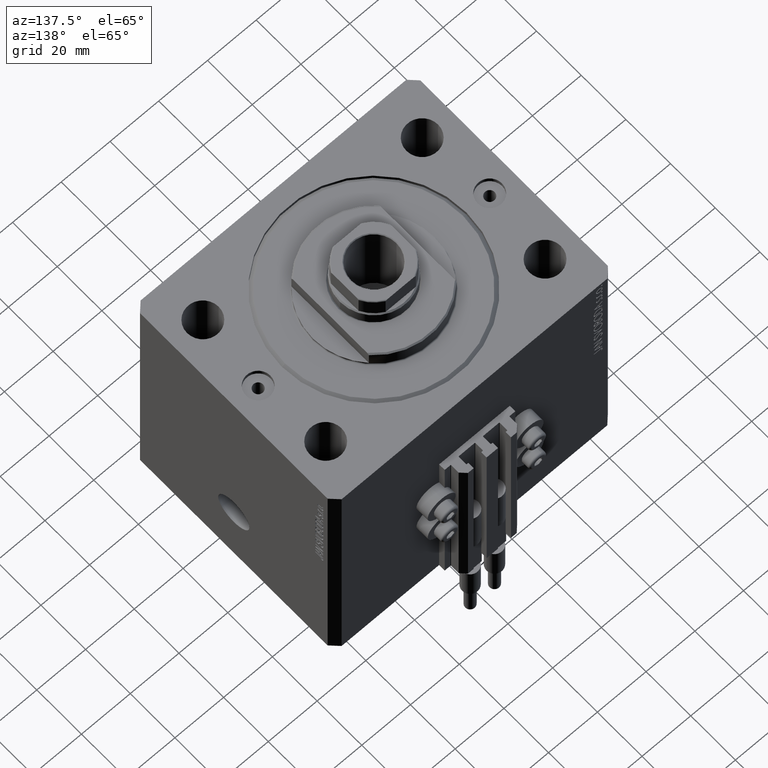
[diagram: clean part render]
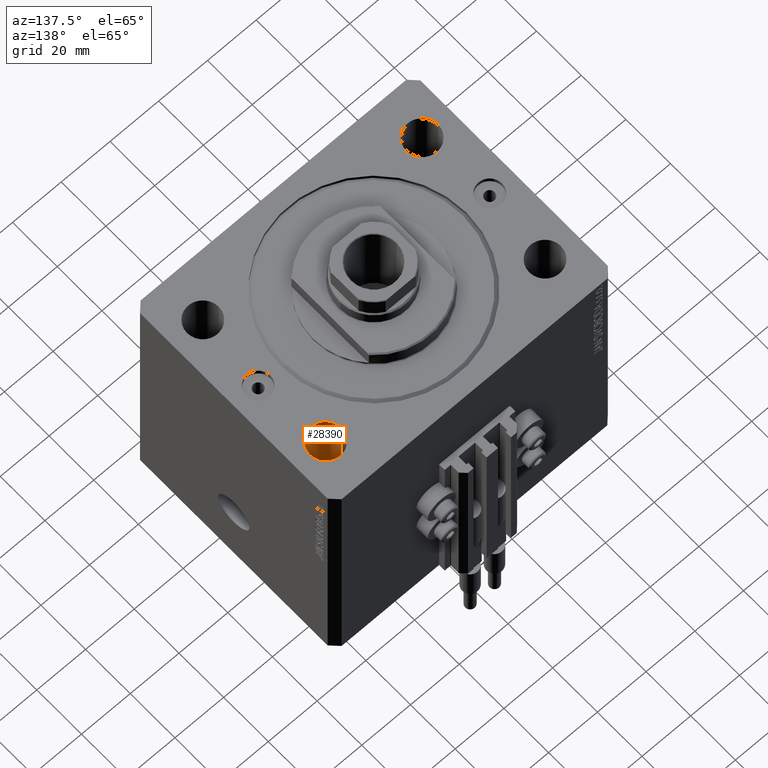
[diagram: same view with one face highlighted and labeled with its STEP entity id]
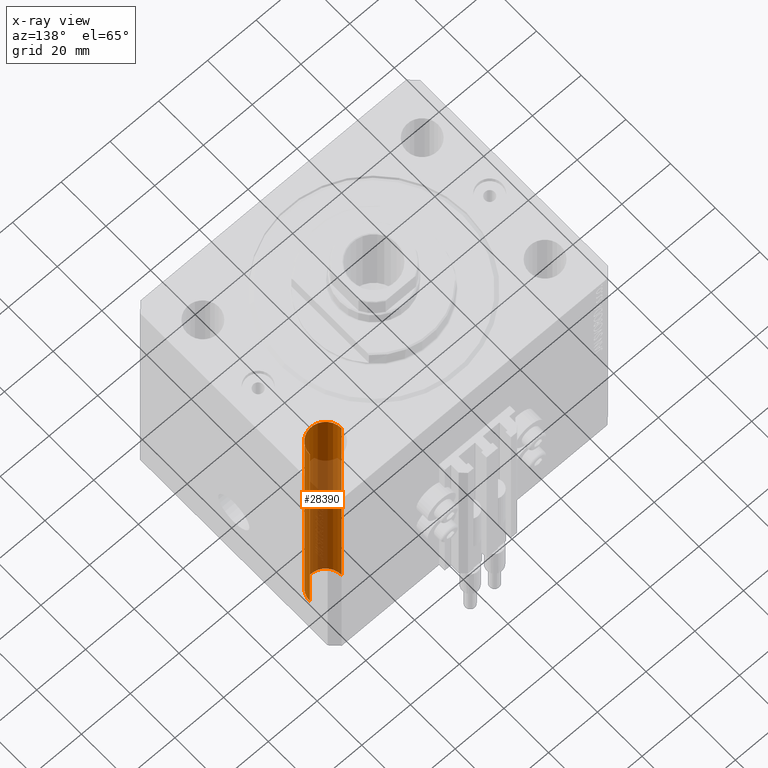
[diagram: x-ray of the same camera — body ghosted, the highlighted face saturated]
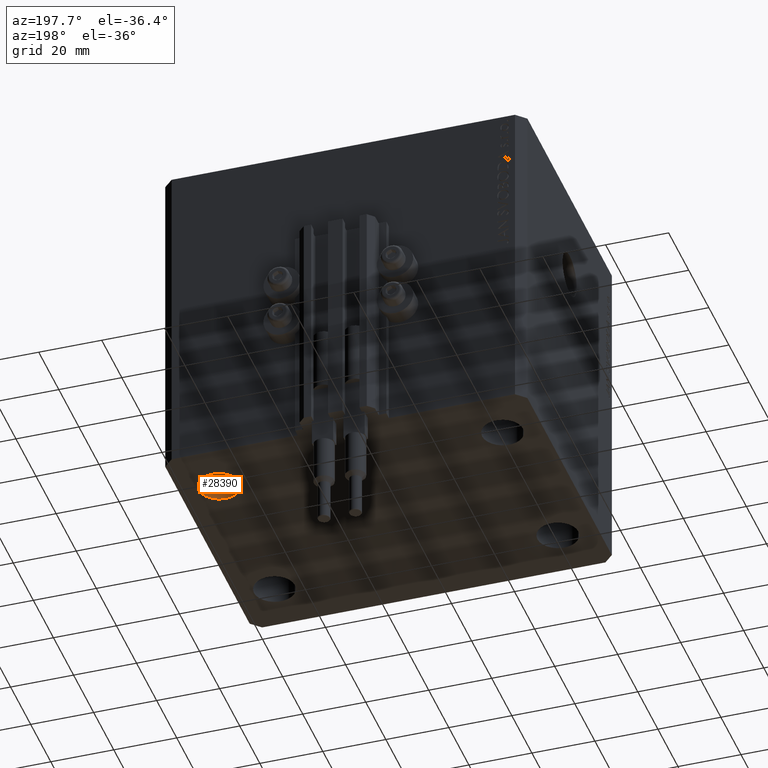
[diagram: same view with one face highlighted and labeled with its STEP entity id]
A machine part, auxiliary view. The second image highlights one B-rep face of the part: STEP entity #28390.
The next image is the same camera in x-ray: the body ghosted, the highlighted face saturated — about 64% of this face is hidden behind the body in this view.
A second angle (auxiliary view) of the same face is appended — the face is thin or edge-on in the first view.
In plain terms, the highlighted cylindrical surface (edge-blend (fillet) strip) has radius 6.5 mm, axis along (0, 0, 1).
Its self-contained STEP definition (entity closure, byte-faithful):
#3721 = ORIENTED_EDGE ( 'NONE', *, *, #31993, .F. ) ;
#4384 = CARTESIAN_POINT ( 'NONE',  ( 51.50000000000000000, 27.49999999999999289, -105.0000000000000000 ) ) ;
#4554 = CARTESIAN_POINT ( 'NONE',  ( 45.00000000000000000, 27.49999999999999289, -123.3847763108502278 ) ) ;
#7572 = DIRECTION ( 'NONE',  ( 1.000000000000000000, 0.000000000000000000, 0.000000000000000000 ) ) ;
#7632 = CIRCLE ( 'NONE', #34780, 6.499999999999999112 ) ;
#9795 = CARTESIAN_POINT ( 'NONE',  ( 45.00000000000000000, 27.49999999999999289, 0.000000000000000000 ) ) ;
#12582 = EDGE_LOOP ( 'NONE', ( #27952, #25590, #34056, #3721 ) ) ;
#13305 = VERTEX_POINT ( 'NONE', #4384 ) ;
#15369 = CARTESIAN_POINT ( 'NONE',  ( 38.50000000000000000, 27.49999999999999289, -105.0000000000000000 ) ) ;
#15506 = VERTEX_POINT ( 'NONE', #39773 ) ;
#15962 = DIRECTION ( 'NONE',  ( -0.000000000000000000, -0.000000000000000000, 1.000000000000000000 ) ) ;
#16864 = AXIS2_PLACEMENT_3D ( 'NONE', #9795, #28513, #24621 ) ;
#17981 = EDGE_CURVE ( 'NONE', #31060, #15506, #31118, .T. ) ;
#18391 = EDGE_CURVE ( 'NONE', #15506, #41121, #37806, .T. ) ;
#19062 = CARTESIAN_POINT ( 'NONE',  ( 51.50000000000000000, 27.49999999999999289, -123.3847763108502278 ) ) ;
#24065 = CARTESIAN_POINT ( 'NONE',  ( 38.50000000000000000, 27.49999999999999289, -123.3847763108502278 ) ) ;
#24621 = DIRECTION ( 'NONE',  ( 1.000000000000000000, 0.000000000000000000, 0.000000000000000000 ) ) ;
#25590 = ORIENTED_EDGE ( 'NONE', *, *, #17981, .T. ) ;
#25608 = CARTESIAN_POINT ( 'NONE',  ( 51.50000000000000000, 27.49999999999999289, 0.000000000000000000 ) ) ;
#26045 = CARTESIAN_POINT ( 'NONE',  ( 45.00000000000000000, 27.49999999999999289, -105.0000000000000000 ) ) ;
#26193 = CYLINDRICAL_SURFACE ( 'NONE', #42604, 6.499999999999999112 ) ;
#27693 = VECTOR ( 'NONE', #42753, 1000.000000000000000 ) ;
#27952 = ORIENTED_EDGE ( 'NONE', *, *, #32039, .T. ) ;
#28390 = ADVANCED_FACE ( 'NONE', ( #29860 ), #26193, .F. ) ;
#28513 = DIRECTION ( 'NONE',  ( 0.000000000000000000, 0.000000000000000000, 1.000000000000000000 ) ) ;
#29860 = FACE_OUTER_BOUND ( 'NONE', #12582, .T. ) ;
#31060 = VERTEX_POINT ( 'NONE', #15369 ) ;
#31118 = LINE ( 'NONE', #24065, #27693 ) ;
#31993 = EDGE_CURVE ( 'NONE', #13305, #41121, #40452, .T. ) ;
#32039 = EDGE_CURVE ( 'NONE', #13305, #31060, #7632, .T. ) ;
#34056 = ORIENTED_EDGE ( 'NONE', *, *, #18391, .T. ) ;
#34780 = AXIS2_PLACEMENT_3D ( 'NONE', #26045, #40854, #7572 ) ;
#35549 = VECTOR ( 'NONE', #47736, 1000.000000000000000 ) ;
#37806 = CIRCLE ( 'NONE', #16864, 6.499999999999999112 ) ;
#39773 = CARTESIAN_POINT ( 'NONE',  ( 38.50000000000000000, 27.49999999999999289, 0.000000000000000000 ) ) ;
#40452 = LINE ( 'NONE', #19062, #35549 ) ;
#40854 = DIRECTION ( 'NONE',  ( -0.000000000000000000, -0.000000000000000000, -1.000000000000000000 ) ) ;
#41121 = VERTEX_POINT ( 'NONE', #25608 ) ;
#42604 = AXIS2_PLACEMENT_3D ( 'NONE', #4554, #15962, #44643 ) ;
#42753 = DIRECTION ( 'NONE',  ( -0.000000000000000000, -0.000000000000000000, 1.000000000000000000 ) ) ;
#44643 = DIRECTION ( 'NONE',  ( 1.000000000000000000, 0.000000000000000000, 0.000000000000000000 ) ) ;
#47736 = DIRECTION ( 'NONE',  ( -0.000000000000000000, -0.000000000000000000, 1.000000000000000000 ) ) ;